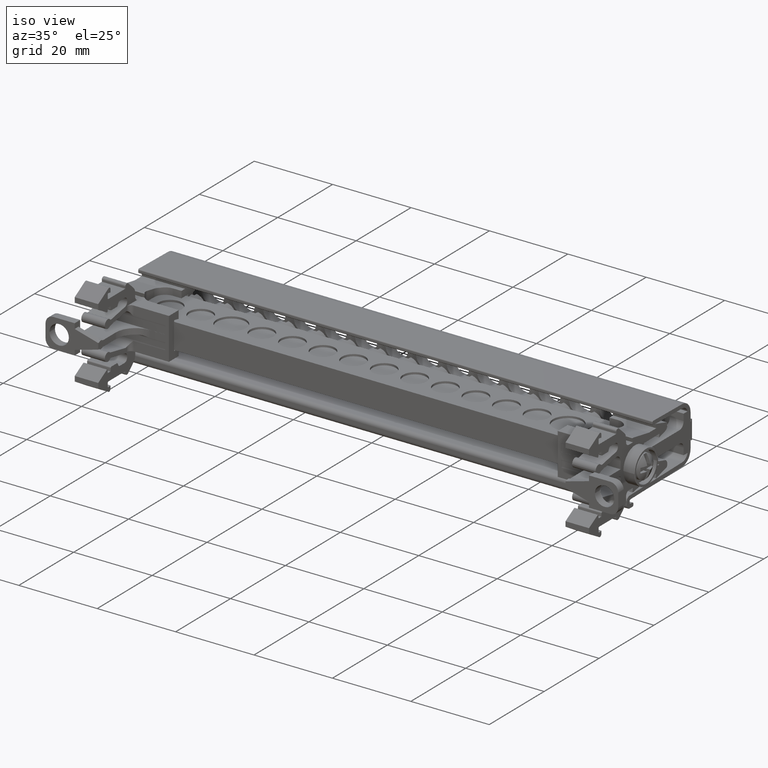
[diagram: clean part render]
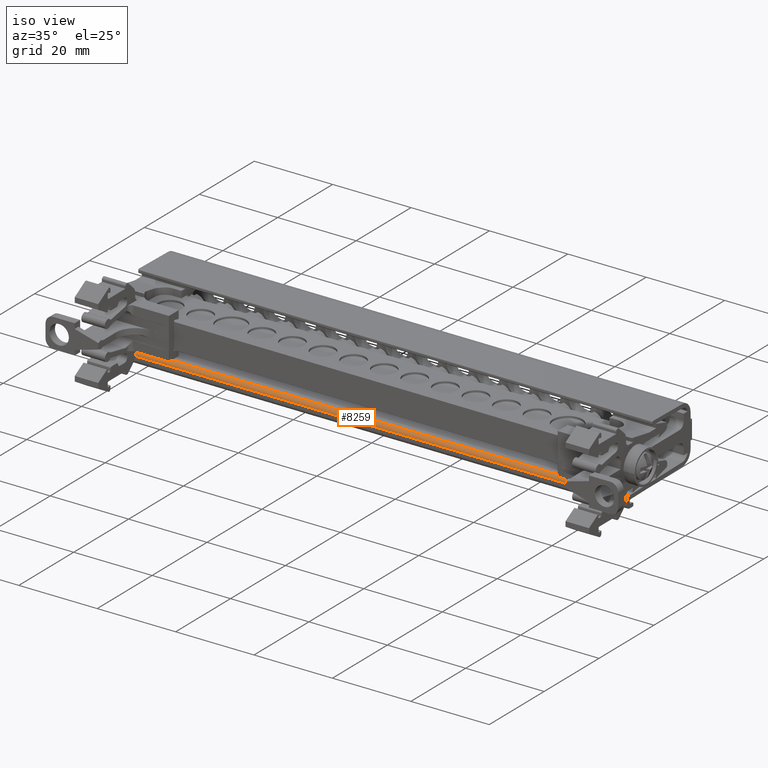
[diagram: same view with one face highlighted and labeled with its STEP entity id]
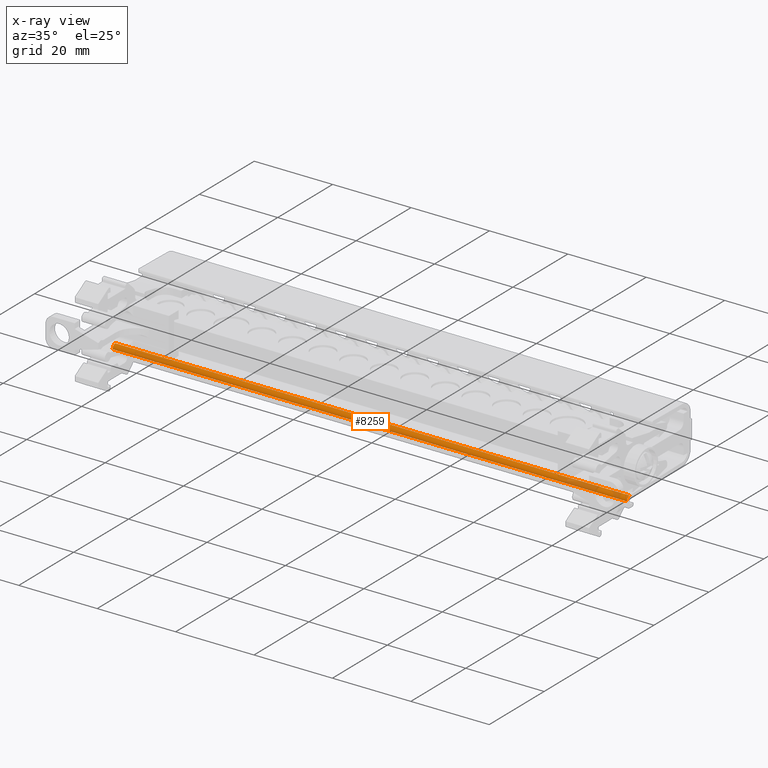
[diagram: x-ray of the same camera — body ghosted, the highlighted face saturated]
A machine part, iso view. The second image highlights one B-rep face of the part: STEP entity #8259.
The next image is the same camera in x-ray: the body ghosted, the highlighted face saturated — about 7% of this face is hidden behind the body in this view.
In plain terms, the highlighted cylindrical surface (edge-blend (fillet) strip) has radius 0.9996 mm, axis along (-1, -0, -0).
Its self-contained STEP definition (entity closure, byte-faithful):
#5625 = AXIS2_PLACEMENT_3D ( 'NONE', #9044, #9022, #9041 ) ;
#6185 = VECTOR ( 'NONE', #10004, 1000.000000000000000 ) ;
#6232 = CIRCLE ( 'NONE', #6234, 0.9996212121125974700 ) ;
#6234 = AXIS2_PLACEMENT_3D ( 'NONE', #10240, #10237, #10235 ) ;
#7519 = EDGE_CURVE ( 'NONE', #33050, #33075, #20472, .T. ) ;
#7706 = EDGE_CURVE ( 'NONE', #33050, #33089, #10850, .T. ) ;
#8259 = ADVANCED_FACE ( 'NONE', ( #9020 ), #9039, .T. ) ;
#8441 = EDGE_CURVE ( 'NONE', #33126, #33089, #10001, .T. ) ;
#8481 = EDGE_CURVE ( 'NONE', #33075, #33126, #6232, .T. ) ;
#9020 = FACE_OUTER_BOUND ( 'NONE', #28115, .T. ) ;
#9022 = DIRECTION ( 'NONE',  ( -1.000000000000000000, -1.123605221868005200E-014, -2.470852055923969000E-015 ) ) ;
#9039 = CYLINDRICAL_SURFACE ( 'NONE', #5625, 0.9996212121125974700 ) ;
#9041 = DIRECTION ( 'NONE',  ( 1.041228490326238200E-014, -1.000000000000000000, 4.164913961304952800E-014 ) ) ;
#9044 = CARTESIAN_POINT ( 'NONE',  ( 24.10289896002510100, -43.98956651627285200, 88.46097687400691700 ) ) ;
#10001 = LINE ( 'NONE', #10019, #6185 ) ;
#10004 = DIRECTION ( 'NONE',  ( 1.000000000000000000, 1.123605221868005200E-014, 2.470852055923969000E-015 ) ) ;
#10019 = CARTESIAN_POINT ( 'NONE',  ( -61.66460103923610300, -44.98918772838646200, 88.46097687400714400 ) ) ;
#10235 = DIRECTION ( 'NONE',  ( -1.388304653768317800E-014, 1.000000000000000000, 0.0000000000000000000 ) ) ;
#10237 = DIRECTION ( 'NONE',  ( 1.000000000000000000, 1.123605221868000100E-014, 2.470852055923969000E-015 ) ) ;
#10240 = CARTESIAN_POINT ( 'NONE',  ( -82.60658967541760900, -43.98956651627405300, 88.46097687400666100 ) ) ;
#10850 = CIRCLE ( 'NONE', #10889, 0.9996212121125974700 ) ;
#10889 = AXIS2_PLACEMENT_3D ( 'NONE', #29238, #29253, #29255 ) ;
#11729 = VECTOR ( 'NONE', #20473, 1000.000000000000000 ) ;
#20472 = LINE ( 'NONE', #20495, #11729 ) ;
#20473 = DIRECTION ( 'NONE',  ( -1.000000000000000000, -1.123605221868005200E-014, -2.470852055923969000E-015 ) ) ;
#20495 = CARTESIAN_POINT ( 'NONE',  ( -44.87096467574441800, -44.00701231195409900, 89.46044583896723200 ) ) ;
#21482 = ORIENTED_EDGE ( 'NONE', *, *, #7519, .T. ) ;
#21532 = ORIENTED_EDGE ( 'NONE', *, *, #8441, .T. ) ;
#21533 = ORIENTED_EDGE ( 'NONE', *, *, #8481, .T. ) ;
#21575 = ORIENTED_EDGE ( 'NONE', *, *, #7706, .F. ) ;
#27077 = CARTESIAN_POINT ( 'NONE',  ( -82.60658967541760900, -44.00701231195452600, 89.46044583896713200 ) ) ;
#27102 = CARTESIAN_POINT ( 'NONE',  ( 48.59443305074179200, -44.00701231195305500, 89.46044583896745900 ) ) ;
#27150 = CARTESIAN_POINT ( 'NONE',  ( -82.60658967541759500, -44.98918772838669600, 88.46097687400708800 ) ) ;
#27163 = CARTESIAN_POINT ( 'NONE',  ( 48.59443305074182700, -44.98918772838521800, 88.46097687400741400 ) ) ;
#28115 = EDGE_LOOP ( 'NONE', ( #21532, #21575, #21482, #21533 ) ) ;
#29238 = CARTESIAN_POINT ( 'NONE',  ( 48.59443305074180600, -43.98956651627257500, 88.46097687400697400 ) ) ;
#29253 = DIRECTION ( 'NONE',  ( 1.000000000000000000, 1.123605221868026300E-014, 1.643677741129682900E-014 ) ) ;
#29255 = DIRECTION ( 'NONE',  ( -1.388304653768317800E-014, 0.0000000000000000000, 1.000000000000000000 ) ) ;
#33050 = VERTEX_POINT ( 'NONE', #27102 ) ;
#33075 = VERTEX_POINT ( 'NONE', #27077 ) ;
#33089 = VERTEX_POINT ( 'NONE', #27163 ) ;
#33126 = VERTEX_POINT ( 'NONE', #27150 ) ;